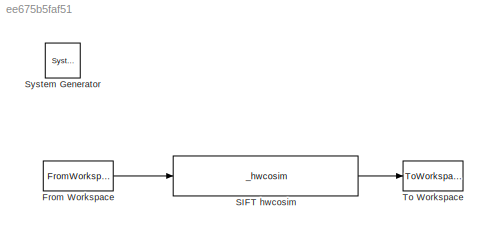
MODEL slx_ee675b5faf51
KIND model
BLOCK [Reference]  System Generator  REF=xbsIndex_r4/ System Generator
  AttributesFormatString = System\nGenerator
  Impl_file = ISE Defaults
  Ports = []
  SourceBlock = xbsIndex_r4/ System Generator
  SourceType = Xilinx System Generator Block
  Synth_file = XST Defaults
  Tag = genX
  UserDataPersistent = on
  block_type = sysgen
  clock_wrapper = Clock Enables
  core_generation = According to Block Masks
  dbl_ovrd = According to Block Masks
  dcm_input_clock_period = 10
  deprecated_control = off
  directory = ./netlist
  eval_field = 0
  has_advanced_control = 0
  incr_netlist = off
  infoedit = System Generator
  package = ff1136
  part = xc5vsx50t
  proj_type = Project Navigator
  run_coregen = off
  sg_icon_stat = 35,35,0,0,token,white,0,58c5b5770fe5f7c311f53dbc6e73f0f6,right,,[ ],[ ]
  sg_mask_display = fprintf('','COMMENT: begin icon graphics');\npatch([0 35 35 0 0 ],[0 0 35 35 0 ],[1 1 1 ]);\npatch([0.3125 11.15 18.65 26.15 33.65 18.65 7.8125 0.3125 ],[25.325 25.325 32.825 25.325 32.825 32.825 32.825 25.325 ],[0.933333 0.203922 0.141176 ]);\npatch([7.8125 18.65 11.15 0.3125 7.8125 ],[17.825 17.825 25.325 25.325 17.825 ],[0.698039 0.0313725 0.219608 ]);\npatch([0.3125 11.15 18.65 7.8125 0.3125 ],[10...<+321ch>
  sggui_pos = 379, 73,464,470
  simulink_period = 1
  speed = -1
  synthesis_tool = XST
  sysclk_period = 10
  testbench = off
  trim_vbits = Everywhere in SubSystem
  xilinxfamily = virtex5
BLOCK [FromWorkspace] From Workspace
  Interpolate = off
  OutputAfterFinalValue = Setting to zero
  SampleTime = 1
  VariableName = grayScaleSignal
BLOCK [Reference] SIFT hwcosim  REF=JTAGRuntimeCosim_r4/_hwcosim
  IRLengths = [16,16,8,8,10]
  Ports = [1, 1]
  Scheme = Cosim
  SourceBlock = JTAGRuntimeCosim_r4/_hwcosim
  SourceType = Xilinx JTAG Hardware Co-simulation Block
  bitfileName = <path>
  block_type = jtagcosim
  bscanPos = 5
  cable = Auto Detect
  cableLocation = Local
  cablePort = N/A
  cableWaitTime = 10
  clkSrc = Single Stepped
  design_xtable = {\n  'clkWrapper' => 'sift_cw',\n  'clocksGcd' => undef,\n  'device' => 'xc5vsx50t-1ff1136',\n  'ports' => {\n    'gateway_in' => {\n      'bd_port_index' => 0,\n      'direction' => 'in',\n      'icon_text' => 'Gateway In',\n      'period' => 1,\n      'sim_pause_trigger' => false,\n      'type' => 'UFix_8_0',\n      'width' => 8,\n    },\n    'gateway_out' => {\n      'bd_port_index' => 0,\n      'direction' =>...<+189ch>
  enable_codebug = on
  engineDll = JTAGCosimEngine.dll
  hasBufgmux = on
  hasCombinationalPath = on
  hasProc = 0
  has_advanced_control = 0
  printLogFile = 0
  sg_icon_stat = 185,40,1,1,white,gray,0,bbd9e0a6,right,,[ ],[ ]
  sg_list_contents = {'table'=>{'speed'=>'popup(N/A)','cablePort'=>'popup(N/A)'}}
  sg_mask_display = fprintf('','COMMENT: begin icon graphics');\npatch([0 185 185 0 0 ],[0 0 40 40 0 ],[0.88 0.88 0.88 ]);\nplot([0 185 185 0 0 ],[0 0 40 40 0 ]);\npatch([80.875 88.1 93.1 98.1 103.1 93.1 85.875 80.875 ],[25.55 25.55 30.55 25.55 30.55 30.55 30.55 25.55 ],[1 1 1 ]);\npatch([85.875 93.1 88.1 80.875 85.875 ],[20.55 20.55 25.55 25.55 20.55 ],[0.964 0.964 0.964 ]);\npatch([80.875 88.1 93.1 85.875 80.875 ],[15.5...<+418ch>
  sggui_pos = -1,-1,-1,-1
  shareCable = off
  skipConfig = off
  speed = N/A
  useCmdProc = 1
  useImpact = 0
  useWaitBox = 1
BLOCK [ToWorkspace] To Workspace
  MaxDataPoints = inf
  Ports = [1]
  SampleTime = 1
  VariableName = filteredImage
LINE From Workspace:1 -> SIFT hwcosim:1
LINE SIFT hwcosim:1 -> To Workspace:1
note: 1 file-system path scrubbed to <path> (not preserved elsewhere — flat text is the only slx artifact)
